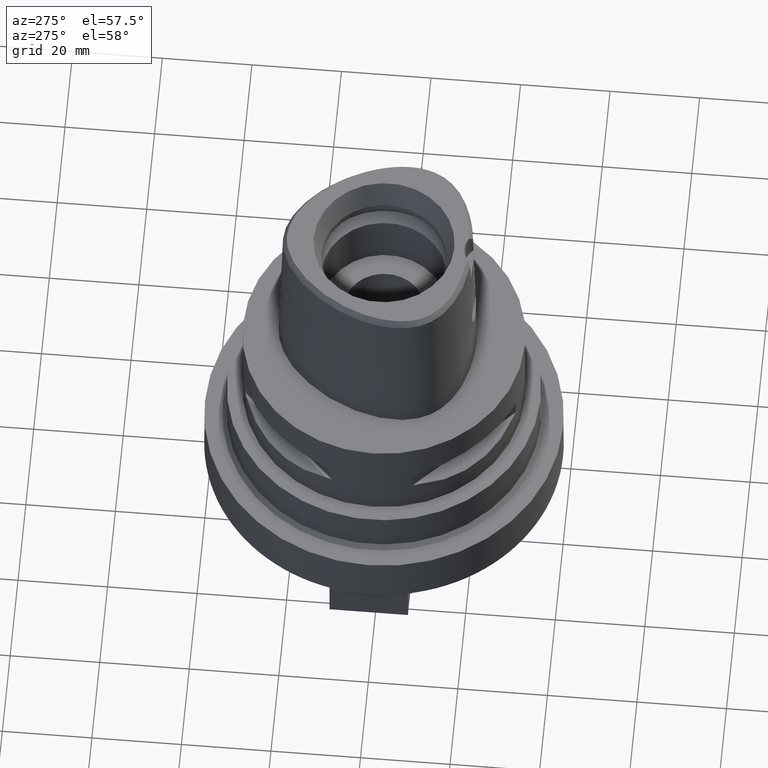
[diagram: clean part render]
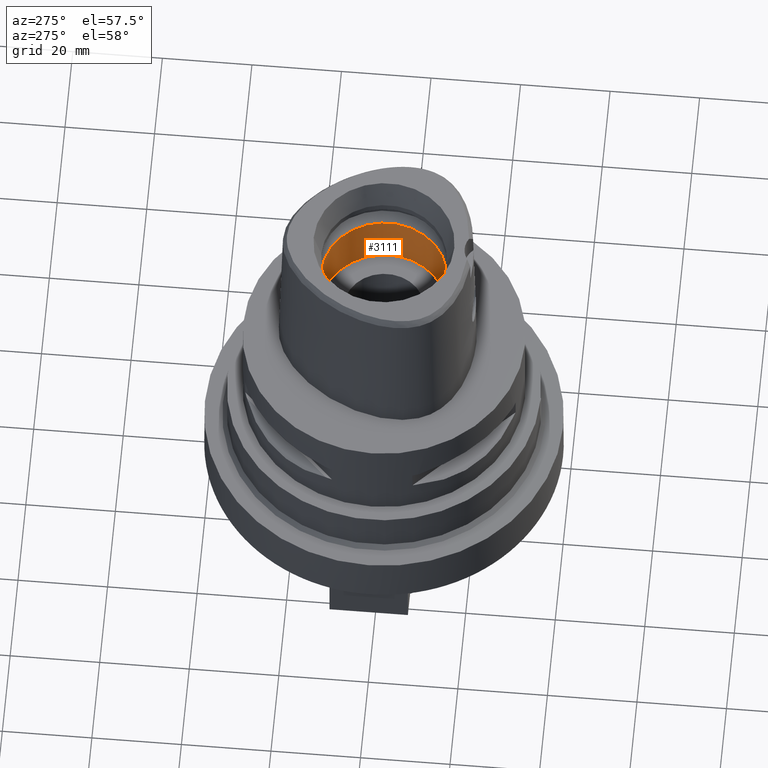
[diagram: same view with one face highlighted and labeled with its STEP entity id]
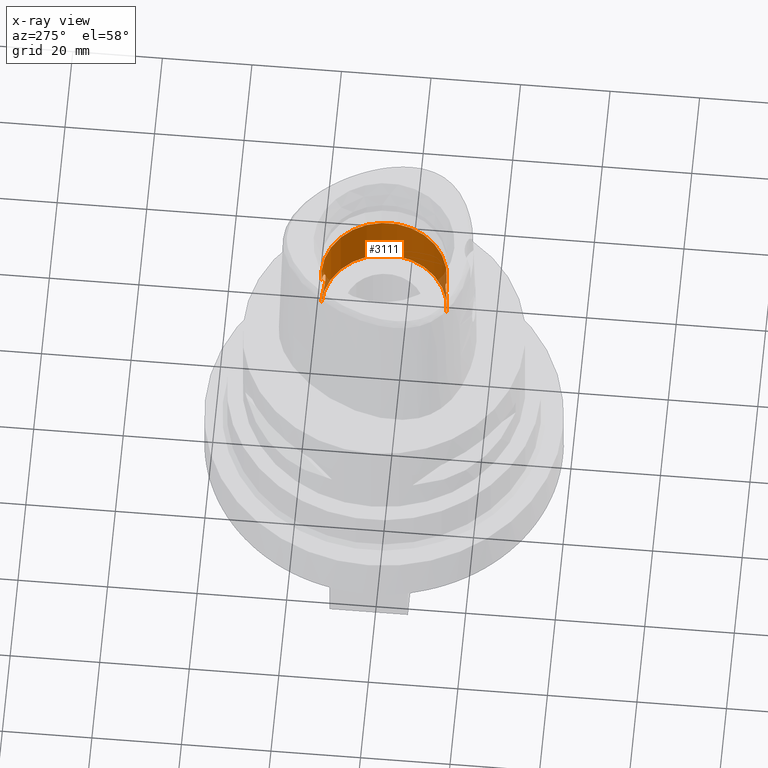
[diagram: x-ray of the same camera — body ghosted, the highlighted face saturated]
A machine part, auxiliary view. The second image highlights one B-rep face of the part: STEP entity #3111.
The next image is the same camera in x-ray: the body ghosted, the highlighted face saturated — about 4% of this face is hidden behind the body in this view.
In plain terms, the highlighted cylindrical surface (partial cylindrical patch) has radius 14 mm, axis along (0, 0, -1).
Its self-contained STEP definition (entity closure, byte-faithful):
#884=CARTESIAN_POINT('',(0.E0,0.E0,1.1E1));
#885=DIRECTION('',(0.E0,0.E0,-1.E0));
#886=DIRECTION('',(0.E0,1.E0,0.E0));
#887=AXIS2_PLACEMENT_3D('',#884,#885,#886);
#916=CARTESIAN_POINT('',(0.E0,1.4E1,1.145E1));
#917=CARTESIAN_POINT('',(3.549651718936E-1,1.4E1,1.145E1));
#918=CARTESIAN_POINT('',(1.042797089629E0,1.397338647428E1,1.154075500503E1));
#919=CARTESIAN_POINT('',(2.026106715515E0,1.386340734447E1,1.193885279298E1));
#920=CARTESIAN_POINT('',(2.888554503124E0,1.370625087655E1,1.259384709830E1));
#921=CARTESIAN_POINT('',(3.547232682471E0,1.354690259281E1,1.344810987419E1));
#922=CARTESIAN_POINT('',(3.961288560119E0,1.342876781251E1,1.445390490239E1));
#923=CARTESIAN_POINT('',(4.094552111593E0,1.338766158589E1,1.550312663361E1));
#924=CARTESIAN_POINT('',(3.960504331048E0,1.342898052380E1,1.654394793318E1));
#925=CARTESIAN_POINT('',(3.555598630922E0,1.354452875512E1,1.753449013033E1));
#926=CARTESIAN_POINT('',(2.909074612501E0,1.370175179262E1,1.838539835100E1));
#927=CARTESIAN_POINT('',(2.045679309849E0,1.386078650950E1,1.905154300997E1));
#928=CARTESIAN_POINT('',(1.047312010261E0,1.397334419497E1,1.945916717971E1));
#929=CARTESIAN_POINT('',(3.562137686674E-1,1.4E1,1.955E1));
#930=CARTESIAN_POINT('',(0.E0,1.4E1,1.955E1));
#935=DIRECTION('',(0.E0,0.E0,1.E0));
#936=VECTOR('',#935,4.65E0);
#937=CARTESIAN_POINT('',(0.E0,1.4E1,1.955E1));
#938=LINE('',#937,#936);
#942=CARTESIAN_POINT('',(0.E0,-1.4E1,1.955E1));
#943=CARTESIAN_POINT('',(3.549456415236E-1,-1.4E1,1.955E1));
#944=CARTESIAN_POINT('',(1.042755149182E0,-1.397339023816E1,1.945925827148E1));
#945=CARTESIAN_POINT('',(2.026125000254E0,-1.386340586572E1,1.906114175543E1));
#946=CARTESIAN_POINT('',(2.888592168341E0,-1.370624305776E1,1.840612105234E1));
#947=CARTESIAN_POINT('',(3.547274777178E0,-1.354689139205E1,1.755181374307E1));
#948=CARTESIAN_POINT('',(3.961300638158E0,-1.342876400422E1,1.654605542885E1));
#949=CARTESIAN_POINT('',(4.094550587952E0,-1.338766213502E1,1.549677546473E1));
#950=CARTESIAN_POINT('',(3.960498217435E0,-1.342898217491E1,1.445606566894E1));
#951=CARTESIAN_POINT('',(3.555625225109E0,-1.354452142212E1,1.346555660886E1));
#952=CARTESIAN_POINT('',(2.909097885891E0,-1.370174742737E1,1.261461966039E1));
#953=CARTESIAN_POINT('',(2.045678311919E0,-1.386078641754E1,1.194845716965E1));
#954=CARTESIAN_POINT('',(1.047344034062E0,-1.397334143508E1,1.154084248115E1));
#955=CARTESIAN_POINT('',(3.562269046693E-1,-1.4E1,1.145E1));
#956=CARTESIAN_POINT('',(0.E0,-1.4E1,1.145E1));
#961=DIRECTION('',(0.E0,0.E0,1.E0));
#962=VECTOR('',#961,4.5E-1);
#963=CARTESIAN_POINT('',(0.E0,1.4E1,1.1E1));
#964=LINE('',#963,#962);
#1001=DIRECTION('',(0.E0,0.E0,1.E0));
#1002=VECTOR('',#1001,4.65E0);
#1003=CARTESIAN_POINT('',(0.E0,-1.4E1,1.955E1));
#1004=LINE('',#1003,#1002);
#1027=DIRECTION('',(0.E0,0.E0,1.E0));
#1028=VECTOR('',#1027,4.5E-1);
#1029=CARTESIAN_POINT('',(0.E0,-1.4E1,1.1E1));
#1030=LINE('',#1029,#1028);
#1143=CARTESIAN_POINT('',(0.E0,0.E0,2.42E1));
#1144=DIRECTION('',(0.E0,0.E0,1.E0));
#1145=DIRECTION('',(0.E0,-1.E0,0.E0));
#1146=AXIS2_PLACEMENT_3D('',#1143,#1144,#1145);
#1874=CARTESIAN_POINT('',(0.E0,1.4E1,1.1E1));
#1875=CARTESIAN_POINT('',(0.E0,-1.4E1,1.1E1));
#1876=VERTEX_POINT('',#1874);
#1877=VERTEX_POINT('',#1875);
#1878=VERTEX_POINT('',#916);
#1879=VERTEX_POINT('',#930);
#1880=CARTESIAN_POINT('',(0.E0,1.4E1,2.42E1));
#1881=VERTEX_POINT('',#1880);
#1882=CARTESIAN_POINT('',(0.E0,-1.4E1,2.42E1));
#1883=VERTEX_POINT('',#1882);
#1884=CARTESIAN_POINT('',(0.E0,-1.4E1,1.955E1));
#1885=VERTEX_POINT('',#1884);
#1886=VERTEX_POINT('',#956);
#3089=CARTESIAN_POINT('',(0.E0,0.E0,3.99E1));
#3090=DIRECTION('',(0.E0,0.E0,-1.E0));
#3091=DIRECTION('',(0.E0,-1.E0,0.E0));
#3092=AXIS2_PLACEMENT_3D('',#3089,#3090,#3091);
#3093=CYLINDRICAL_SURFACE('',#3092,1.4E1);
#3095=ORIENTED_EDGE('',*,*,#3094,.T.);
#3097=ORIENTED_EDGE('',*,*,#3096,.T.);
#3099=ORIENTED_EDGE('',*,*,#3098,.F.);
#3101=ORIENTED_EDGE('',*,*,#3100,.F.);
#3103=ORIENTED_EDGE('',*,*,#3102,.T.);
#3105=ORIENTED_EDGE('',*,*,#3104,.F.);
#3106=ORIENTED_EDGE('',*,*,#3078,.F.);
#3108=ORIENTED_EDGE('',*,*,#3107,.T.);
#3109=EDGE_LOOP('',(#3095,#3097,#3099,#3101,#3103,#3105,#3106,#3108));
#3110=FACE_OUTER_BOUND('',#3109,.F.);
#888=CIRCLE('',#887,1.4E1);
#931=B_SPLINE_CURVE_WITH_KNOTS('',3,(#916,#917,#918,#919,#920,#921,#922,#923,
#924,#925,#926,#927,#928,#929,#930),.UNSPECIFIED.,.F.,.F.,(4,1,1,1,1,1,1,1,1,1,
1,1,4),(0.E0,8.333333333333E-2,1.666666666667E-1,2.5E-1,3.333333333333E-1,
4.166666666667E-1,5.E-1,5.833333333333E-1,6.666666666667E-1,7.5E-1,
8.333333333333E-1,9.166666666667E-1,1.E0),.UNSPECIFIED.);
#957=B_SPLINE_CURVE_WITH_KNOTS('',3,(#942,#943,#944,#945,#946,#947,#948,#949,
#950,#951,#952,#953,#954,#955,#956),.UNSPECIFIED.,.F.,.F.,(4,1,1,1,1,1,1,1,1,1,
1,1,4),(0.E0,8.333333333333E-2,1.666666666667E-1,2.5E-1,3.333333333333E-1,
4.166666666667E-1,5.E-1,5.833333333333E-1,6.666666666667E-1,7.5E-1,
8.333333333333E-1,9.166666666667E-1,1.E0),.UNSPECIFIED.);
#1147=CIRCLE('',#1146,1.4E1);
#3078=EDGE_CURVE('',#1876,#1877,#888,.T.);
#3094=EDGE_CURVE('',#1878,#1879,#931,.T.);
#3096=EDGE_CURVE('',#1879,#1881,#938,.T.);
#3098=EDGE_CURVE('',#1883,#1881,#1147,.T.);
#3100=EDGE_CURVE('',#1885,#1883,#1004,.T.);
#3102=EDGE_CURVE('',#1885,#1886,#957,.T.);
#3104=EDGE_CURVE('',#1877,#1886,#1030,.T.);
#3107=EDGE_CURVE('',#1876,#1878,#964,.T.);
#3111=ADVANCED_FACE('',(#3110),#3093,.F.);